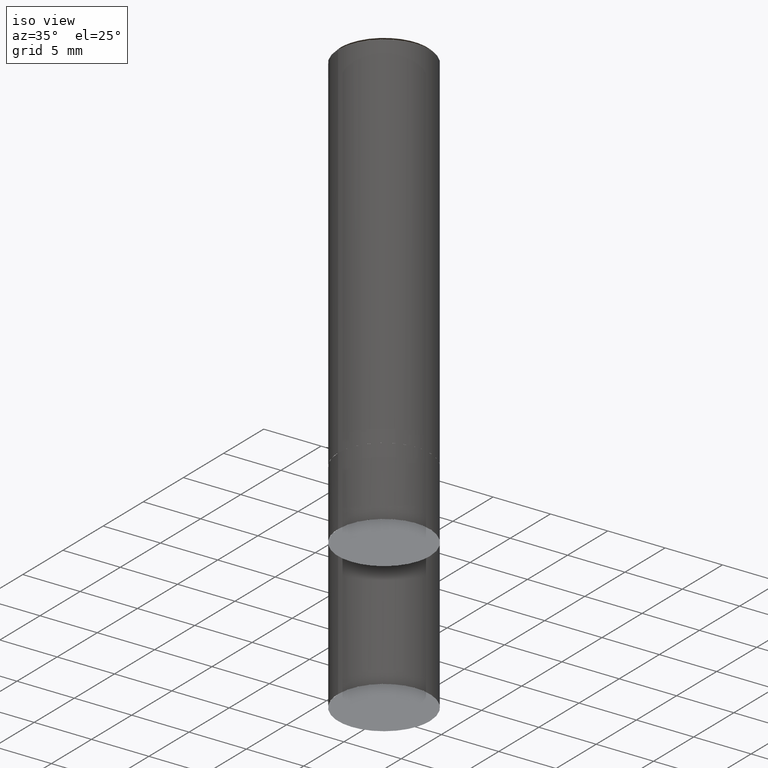
[diagram: clean part render]
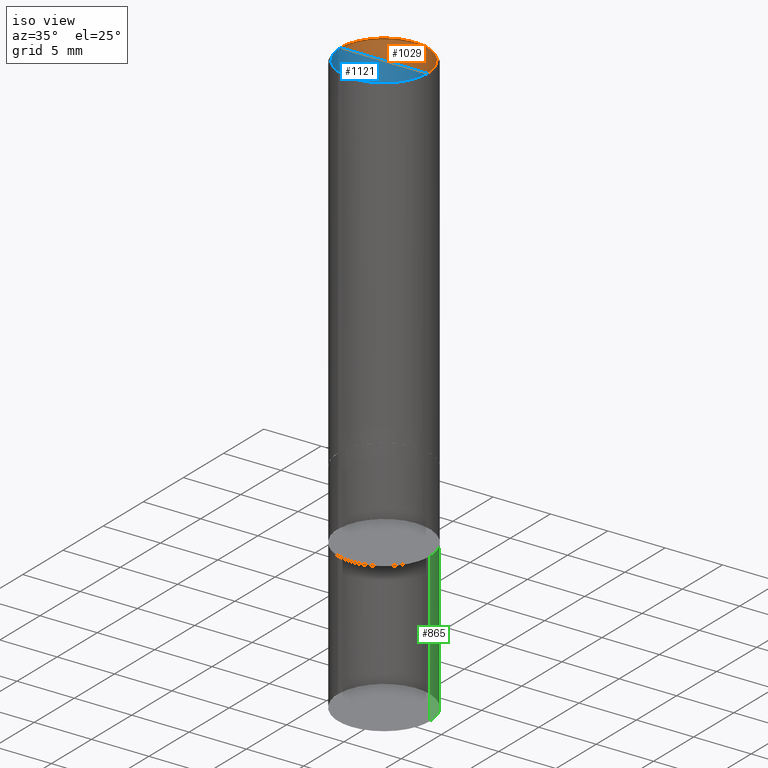
[diagram: same view with three faces highlighted in distinct colors, each labeled with its STEP entity id]
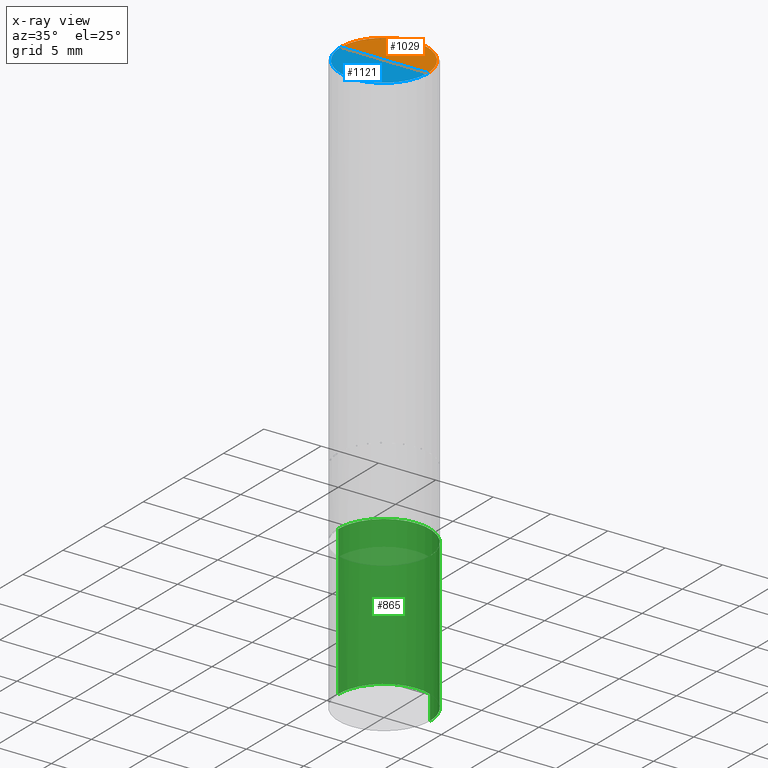
[diagram: x-ray of the same camera — body ghosted, the three highlighted faces saturated]
A machine part, iso view with three faces highlighted in distinct colors.
The next image is the same camera in x-ray (body ghosted, the three faces saturated) — at least one of them is partly hidden behind the body in this view.
Their STEP definitions:

[orange] entity #1029 — the highlighted face is a freeform B-spline surface patch.
#808=CARTESIAN_POINT('',(3.8,0.0,32.0));
#809=CARTESIAN_POINT('',(3.8,3.8,32.0));
#810=CARTESIAN_POINT('',(0.0,3.8,32.0));
#811=CARTESIAN_POINT('',(-3.8,3.8,32.0));
#812=CARTESIAN_POINT('',(-3.8,0.0,32.0));
#813=CARTESIAN_POINT('',(0.0,0.0,32.0));
#1014=(
BOUNDED_SURFACE()
B_SPLINE_SURFACE(1,2,(
(#808,#809,#810,#811,#812),
(#813,#813,#813,#813,#813)
), .UNSPECIFIED.,.F.,.F.,.F.)
B_SPLINE_SURFACE_WITH_KNOTS((2,2),(3,2,3),(
0.0,1.0),(
0.0,0.5,1.0), .UNSPECIFIED.)
GEOMETRIC_REPRESENTATION_ITEM()
RATIONAL_B_SPLINE_SURFACE(((1.0,0.707106781187,1.0,0.707106781187,1.0),
(1.0,0.707106781187,1.0,0.707106781187,1.0)
))
REPRESENTATION_ITEM('')
SURFACE()
);
#1015=(
BOUNDED_CURVE()
B_SPLINE_CURVE(2,(#812,#811,#810,#809,#808),.UNSPECIFIED.,.F.,.F.)
B_SPLINE_CURVE_WITH_KNOTS((3,2,3),
(0.0,0.5,1.0),.UNSPECIFIED.)
CURVE()
GEOMETRIC_REPRESENTATION_ITEM()
RATIONAL_B_SPLINE_CURVE((1.0,0.707106781187,1.0,0.707106781187,1.0))
REPRESENTATION_ITEM('')
);
#1016=(
BOUNDED_CURVE()
B_SPLINE_CURVE(1,(#808,#813),.UNSPECIFIED.,.F.,.F.)
B_SPLINE_CURVE_WITH_KNOTS((2,2),
(0.0,1.0),.UNSPECIFIED.)
CURVE()
GEOMETRIC_REPRESENTATION_ITEM()
RATIONAL_B_SPLINE_CURVE((1.0,1.0))
REPRESENTATION_ITEM('')
);
#1017=(
BOUNDED_CURVE()
B_SPLINE_CURVE(1,(#813,#812),.UNSPECIFIED.,.F.,.F.)
B_SPLINE_CURVE_WITH_KNOTS((2,2),
(0.0,1.0),.UNSPECIFIED.)
CURVE()
GEOMETRIC_REPRESENTATION_ITEM()
RATIONAL_B_SPLINE_CURVE((1.0,1.0))
REPRESENTATION_ITEM('')
);
#1018=VERTEX_POINT('',#808);
#1019=VERTEX_POINT('',#812);
#1020=VERTEX_POINT('',#813);
#1021=EDGE_CURVE('',#1019,#1018,#1015,.T.);
#1022=EDGE_CURVE('',#1018,#1020,#1016,.T.);
#1023=EDGE_CURVE('',#1020,#1019,#1017,.T.);
#1024=ORIENTED_EDGE('',*,*,#1021,.T.);
#1025=ORIENTED_EDGE('',*,*,#1022,.T.);
#1026=ORIENTED_EDGE('',*,*,#1023,.T.);
#1027=EDGE_LOOP('',(#1024,#1025,#1026));
#1028=FACE_OUTER_BOUND('',#1027,.T.);
#1029=ADVANCED_FACE('',(#1028),#1014,.T.);

[blue] entity #1121 — the highlighted face is a freeform B-spline surface patch.
#808=CARTESIAN_POINT('',(3.8,0.0,32.0));
#812=CARTESIAN_POINT('',(-3.8,0.0,32.0));
#813=CARTESIAN_POINT('',(0.0,0.0,32.0));
#820=CARTESIAN_POINT('',(-3.8,-3.8,32.0));
#821=CARTESIAN_POINT('',(0.0,-3.8,32.0));
#822=CARTESIAN_POINT('',(3.8,-3.8,32.0));
#1106=(
BOUNDED_SURFACE()
B_SPLINE_SURFACE(1,2,(
(#812,#820,#821,#822,#808),
(#813,#813,#813,#813,#813)
), .UNSPECIFIED.,.F.,.F.,.F.)
B_SPLINE_SURFACE_WITH_KNOTS((2,2),(3,2,3),(
0.0,1.0),(
0.0,0.5,1.0), .UNSPECIFIED.)
GEOMETRIC_REPRESENTATION_ITEM()
RATIONAL_B_SPLINE_SURFACE(((1.0,0.707106781187,1.0,0.707106781187,1.0),
(1.0,0.707106781187,1.0,0.707106781187,1.0)
))
REPRESENTATION_ITEM('')
SURFACE()
);
#1107=(
BOUNDED_CURVE()
B_SPLINE_CURVE(2,(#808,#822,#821,#820,#812),.UNSPECIFIED.,.F.,.F.)
B_SPLINE_CURVE_WITH_KNOTS((3,2,3),
(0.0,0.5,1.0),.UNSPECIFIED.)
CURVE()
GEOMETRIC_REPRESENTATION_ITEM()
RATIONAL_B_SPLINE_CURVE((1.0,0.707106781187,1.0,0.707106781187,1.0))
REPRESENTATION_ITEM('')
);
#1108=(
BOUNDED_CURVE()
B_SPLINE_CURVE(1,(#812,#813),.UNSPECIFIED.,.F.,.F.)
B_SPLINE_CURVE_WITH_KNOTS((2,2),
(0.0,1.0),.UNSPECIFIED.)
CURVE()
GEOMETRIC_REPRESENTATION_ITEM()
RATIONAL_B_SPLINE_CURVE((1.0,1.0))
REPRESENTATION_ITEM('')
);
#1109=(
BOUNDED_CURVE()
B_SPLINE_CURVE(1,(#813,#808),.UNSPECIFIED.,.F.,.F.)
B_SPLINE_CURVE_WITH_KNOTS((2,2),
(0.0,1.0),.UNSPECIFIED.)
CURVE()
GEOMETRIC_REPRESENTATION_ITEM()
RATIONAL_B_SPLINE_CURVE((1.0,1.0))
REPRESENTATION_ITEM('')
);
#1110=VERTEX_POINT('',#808);
#1111=VERTEX_POINT('',#812);
#1112=VERTEX_POINT('',#813);
#1113=EDGE_CURVE('',#1110,#1111,#1107,.T.);
#1114=EDGE_CURVE('',#1111,#1112,#1108,.T.);
#1115=EDGE_CURVE('',#1112,#1110,#1109,.T.);
#1116=ORIENTED_EDGE('',*,*,#1113,.T.);
#1117=ORIENTED_EDGE('',*,*,#1114,.T.);
#1118=ORIENTED_EDGE('',*,*,#1115,.T.);
#1119=EDGE_LOOP('',(#1116,#1117,#1118));
#1120=FACE_OUTER_BOUND('',#1119,.T.);
#1121=ADVANCED_FACE('',(#1120),#1106,.T.);

[green] entity #865 — the highlighted face is a freeform B-spline surface patch.
#290=CARTESIAN_POINT('',(4.0,0.0,-19.0));
#471=CARTESIAN_POINT('',(0.0,4.0,-19.0));
#652=CARTESIAN_POINT('',(-4.0,0.0,-19.0));
#785=CARTESIAN_POINT('',(4.0,4.0,-19.0));
#786=CARTESIAN_POINT('',(-4.0,4.0,-19.0));
#787=CARTESIAN_POINT('',(4.0,0.0,-6.0));
#788=CARTESIAN_POINT('',(4.0,4.0,-6.0));
#789=CARTESIAN_POINT('',(0.0,4.0,-6.0));
#790=CARTESIAN_POINT('',(-4.0,4.0,-6.0));
#791=CARTESIAN_POINT('',(-4.0,0.0,-6.0));
#846=(
BOUNDED_SURFACE()
B_SPLINE_SURFACE(1,2,(
(#290,#785,#471,#786,#652),
(#787,#788,#789,#790,#791)
), .UNSPECIFIED.,.F.,.F.,.F.)
B_SPLINE_SURFACE_WITH_KNOTS((2,2),(3,2,3),(
0.0,1.0),(
0.0,0.5,1.0), .UNSPECIFIED.)
GEOMETRIC_REPRESENTATION_ITEM()
RATIONAL_B_SPLINE_SURFACE(((1.0,0.707106781187,1.0,0.707106781187,1.0),
(1.0,0.707106781187,1.0,0.707106781187,1.0)
))
REPRESENTATION_ITEM('')
SURFACE()
);
#847=(
BOUNDED_CURVE()
B_SPLINE_CURVE(2,(#652,#786,#471,#785,#290),.UNSPECIFIED.,.F.,.F.)
B_SPLINE_CURVE_WITH_KNOTS((3,2,3),
(0.0,0.5,1.0),.UNSPECIFIED.)
CURVE()
GEOMETRIC_REPRESENTATION_ITEM()
RATIONAL_B_SPLINE_CURVE((1.0,0.707106781187,1.0,0.707106781187,1.0))
REPRESENTATION_ITEM('')
);
#848=(
BOUNDED_CURVE()
B_SPLINE_CURVE(1,(#290,#787),.UNSPECIFIED.,.F.,.F.)
B_SPLINE_CURVE_WITH_KNOTS((2,2),
(0.0,1.0),.UNSPECIFIED.)
CURVE()
GEOMETRIC_REPRESENTATION_ITEM()
RATIONAL_B_SPLINE_CURVE((1.0,1.0))
REPRESENTATION_ITEM('')
);
#849=(
BOUNDED_CURVE()
B_SPLINE_CURVE(2,(#787,#788,#789,#790,#791),.UNSPECIFIED.,.F.,.F.)
B_SPLINE_CURVE_WITH_KNOTS((3,2,3),
(0.0,0.5,1.0),.UNSPECIFIED.)
CURVE()
GEOMETRIC_REPRESENTATION_ITEM()
RATIONAL_B_SPLINE_CURVE((1.0,0.707106781187,1.0,0.707106781187,1.0))
REPRESENTATION_ITEM('')
);
#850=(
BOUNDED_CURVE()
B_SPLINE_CURVE(1,(#791,#652),.UNSPECIFIED.,.F.,.F.)
B_SPLINE_CURVE_WITH_KNOTS((2,2),
(0.0,1.0),.UNSPECIFIED.)
CURVE()
GEOMETRIC_REPRESENTATION_ITEM()
RATIONAL_B_SPLINE_CURVE((1.0,1.0))
REPRESENTATION_ITEM('')
);
#851=VERTEX_POINT('',#290);
#852=VERTEX_POINT('',#652);
#853=VERTEX_POINT('',#787);
#854=VERTEX_POINT('',#791);
#855=EDGE_CURVE('',#852,#851,#847,.T.);
#856=EDGE_CURVE('',#851,#853,#848,.T.);
#857=EDGE_CURVE('',#853,#854,#849,.T.);
#858=EDGE_CURVE('',#854,#852,#850,.T.);
#859=ORIENTED_EDGE('',*,*,#855,.T.);
#860=ORIENTED_EDGE('',*,*,#856,.T.);
#861=ORIENTED_EDGE('',*,*,#857,.T.);
#862=ORIENTED_EDGE('',*,*,#858,.T.);
#863=EDGE_LOOP('',(#859,#860,#861,#862));
#864=FACE_OUTER_BOUND('',#863,.T.);
#865=ADVANCED_FACE('',(#864),#846,.T.);